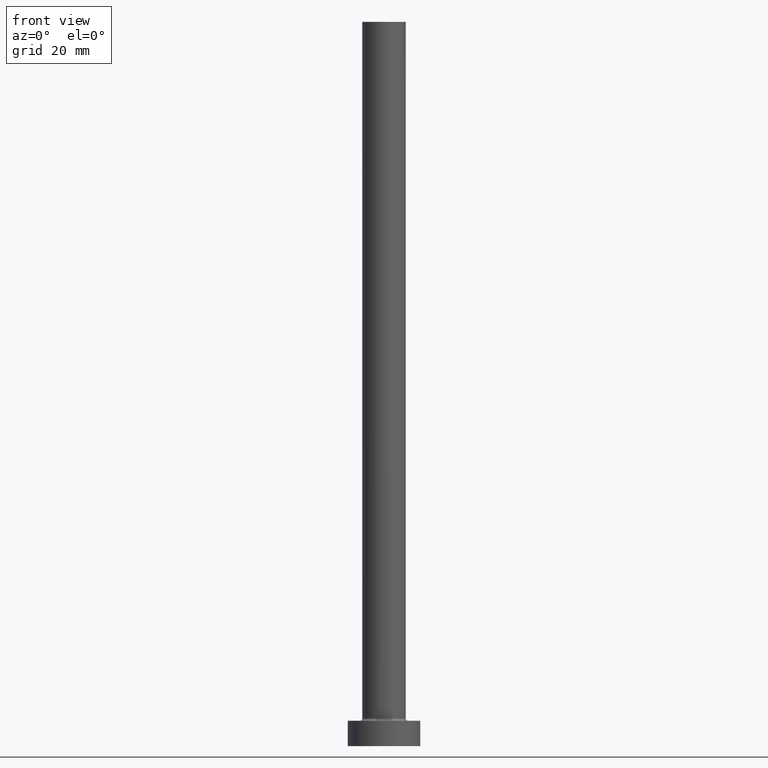
[diagram: clean part render]
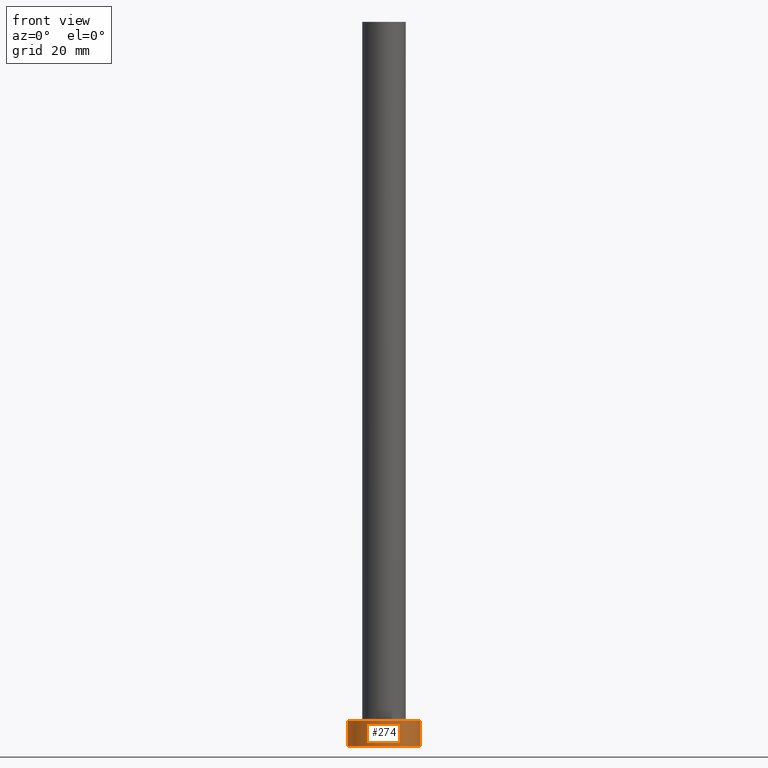
[diagram: same view with one face highlighted and labeled with its STEP entity id]
A machine part, front view. The second image highlights one B-rep face of the part: STEP entity #274.
In plain terms, the highlighted cylindrical surface (edge-blend (fillet) strip) has radius 10 mm, axis along (-0, -0, -1).
Its self-contained STEP definition (entity closure, byte-faithful):
#9 = EDGE_CURVE ( 'NONE', #129, #127, #275, .T. ) ;
#10 = DIRECTION ( 'NONE',  ( 0.000000000000000000, 0.000000000000000000, 1.000000000000000000 ) ) ;
#12 = ORIENTED_EDGE ( 'NONE', *, *, #72, .F. ) ;
#15 = ORIENTED_EDGE ( 'NONE', *, *, #426, .T. ) ;
#25 = AXIS2_PLACEMENT_3D ( 'NONE', #56, #303, #195 ) ;
#27 = CYLINDRICAL_SURFACE ( 'NONE', #25, 10.00000000000000000 ) ;
#34 = ORIENTED_EDGE ( 'NONE', *, *, #9, .F. ) ;
#41 = CARTESIAN_POINT ( 'NONE',  ( 10.00000000000000000, 1.224646799147353256E-15, 0.000000000000000000 ) ) ;
#56 = CARTESIAN_POINT ( 'NONE',  ( 0.000000000000000000, 0.000000000000000000, 7.000000000000000000 ) ) ;
#62 = DIRECTION ( 'NONE',  ( -0.000000000000000000, -0.000000000000000000, -1.000000000000000000 ) ) ;
#72 = EDGE_CURVE ( 'NONE', #353, #129, #226, .T. ) ;
#91 = AXIS2_PLACEMENT_3D ( 'NONE', #371, #10, #187 ) ;
#124 = FACE_OUTER_BOUND ( 'NONE', #316, .T. ) ;
#127 = VERTEX_POINT ( 'NONE', #41 ) ;
#129 = VERTEX_POINT ( 'NONE', #251 ) ;
#134 = LINE ( 'NONE', #234, #377 ) ;
#162 = VECTOR ( 'NONE', #321, 1000.000000000000000 ) ;
#171 = CARTESIAN_POINT ( 'NONE',  ( 10.00000000000000000, 1.224646799147353256E-15, 7.000000000000000000 ) ) ;
#187 = DIRECTION ( 'NONE',  ( 1.000000000000000000, 0.000000000000000000, 0.000000000000000000 ) ) ;
#192 = VERTEX_POINT ( 'NONE', #360 ) ;
#195 = DIRECTION ( 'NONE',  ( -1.000000000000000000, 0.000000000000000000, 0.000000000000000000 ) ) ;
#226 = CIRCLE ( 'NONE', #91, 10.00000000000000000 ) ;
#234 = CARTESIAN_POINT ( 'NONE',  ( -10.00000000000000000, 0.000000000000000000, 7.000000000000000000 ) ) ;
#251 = CARTESIAN_POINT ( 'NONE',  ( 10.00000000000000000, 1.224646799147353256E-15, 7.000000000000000000 ) ) ;
#263 = CARTESIAN_POINT ( 'NONE',  ( -10.00000000000000000, 0.000000000000000000, 7.000000000000000000 ) ) ;
#274 = ADVANCED_FACE ( 'NONE', ( #124 ), #27, .T. ) ;
#275 = LINE ( 'NONE', #171, #162 ) ;
#303 = DIRECTION ( 'NONE',  ( -0.000000000000000000, -0.000000000000000000, -1.000000000000000000 ) ) ;
#316 = EDGE_LOOP ( 'NONE', ( #34, #12, #15, #332 ) ) ;
#321 = DIRECTION ( 'NONE',  ( -0.000000000000000000, -0.000000000000000000, -1.000000000000000000 ) ) ;
#332 = ORIENTED_EDGE ( 'NONE', *, *, #341, .T. ) ;
#341 = EDGE_CURVE ( 'NONE', #192, #127, #384, .T. ) ;
#343 = DIRECTION ( 'NONE',  ( 0.000000000000000000, 0.000000000000000000, 1.000000000000000000 ) ) ;
#353 = VERTEX_POINT ( 'NONE', #263 ) ;
#360 = CARTESIAN_POINT ( 'NONE',  ( -10.00000000000000000, 0.000000000000000000, 0.000000000000000000 ) ) ;
#371 = CARTESIAN_POINT ( 'NONE',  ( 0.000000000000000000, 0.000000000000000000, 7.000000000000000000 ) ) ;
#377 = VECTOR ( 'NONE', #62, 1000.000000000000000 ) ;
#382 = CARTESIAN_POINT ( 'NONE',  ( 0.000000000000000000, 0.000000000000000000, 0.000000000000000000 ) ) ;
#384 = CIRCLE ( 'NONE', #406, 10.00000000000000000 ) ;
#406 = AXIS2_PLACEMENT_3D ( 'NONE', #382, #343, #413 ) ;
#413 = DIRECTION ( 'NONE',  ( 1.000000000000000000, 0.000000000000000000, 0.000000000000000000 ) ) ;
#426 = EDGE_CURVE ( 'NONE', #353, #192, #134, .T. ) ;